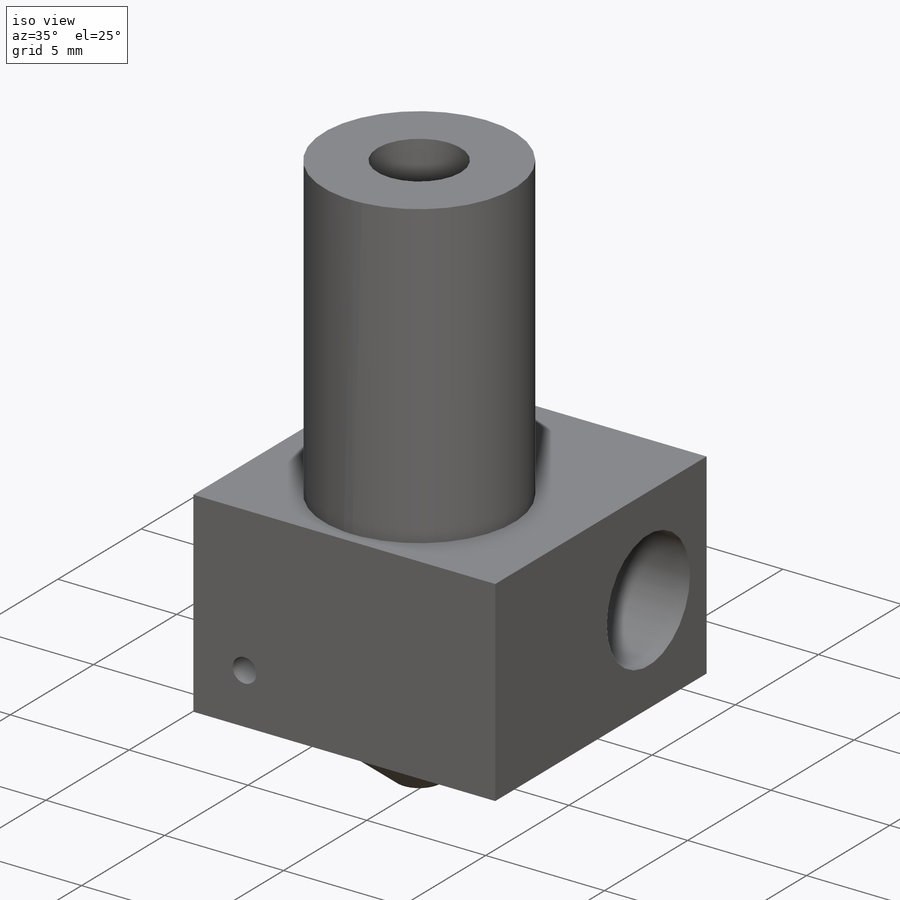
[diagram: iso view]
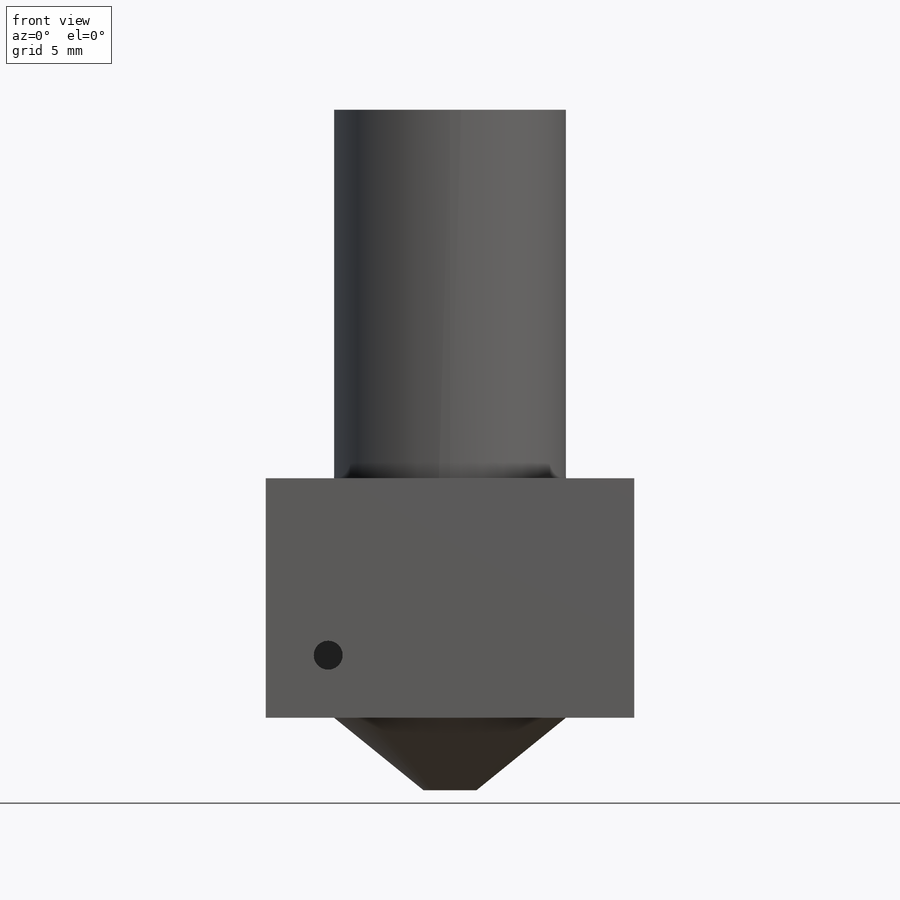
[diagram: front view]
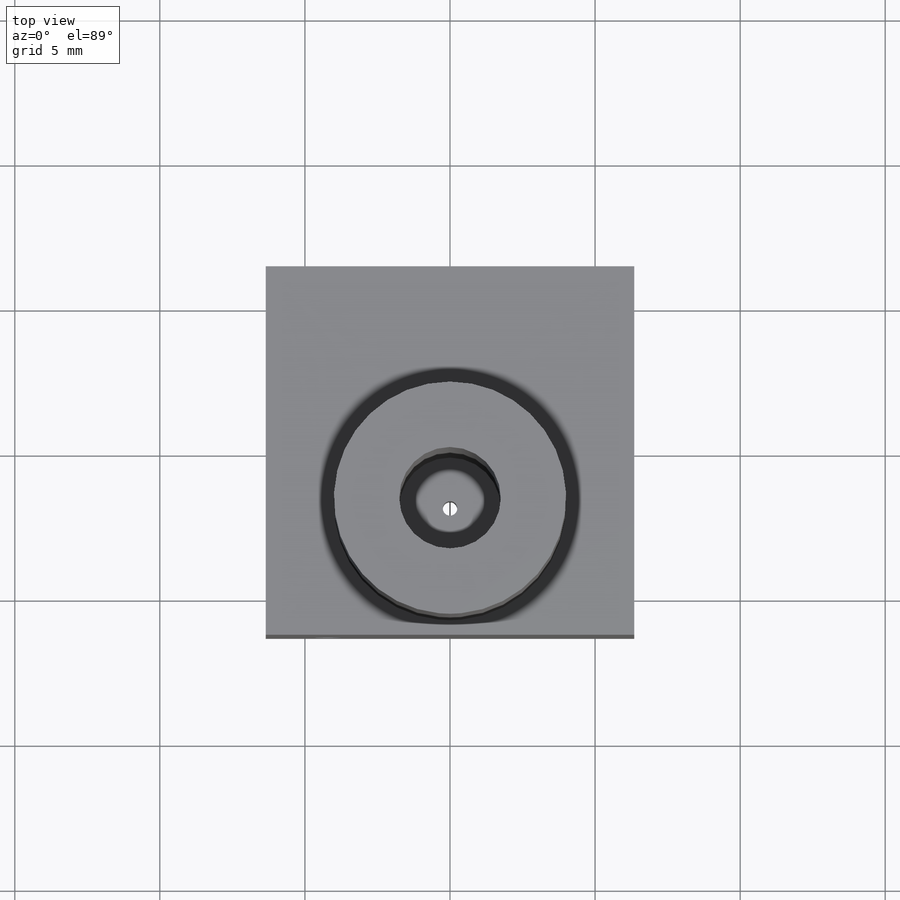
[diagram: top view]
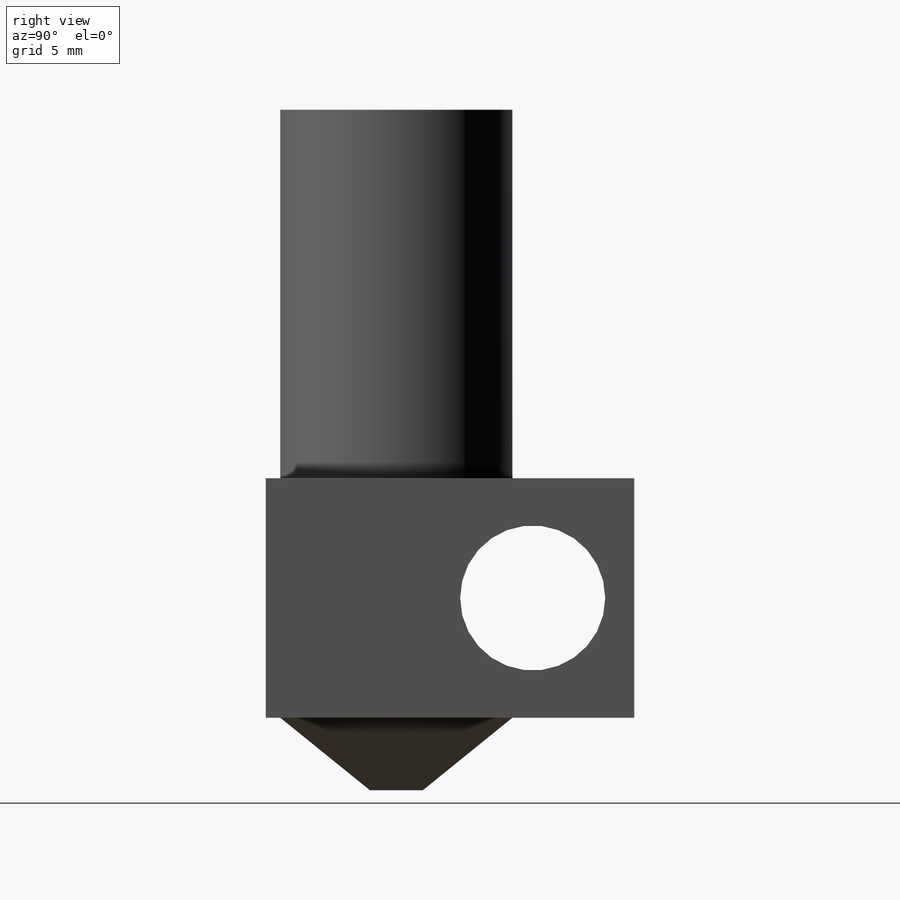
[diagram: right view]
SOLIDWORKS PART (.sldprt)
format: sldprt  version: not decoded by parser v0  size: 156,160 bytes
history: native  units: mm
features: sketch x7, cut_extrude x4, extrude x3, material x1 (+16 scaffold rows collapsed)
feature tree (31):
  scaffold x16  (default folders/planes/origin — collapsed)
  material  "Material <not specified>"
  sketch  "Sketch1"
  extrude  "Extrude1"  Depth=8.255mm
  sketch  "Sketch2"  dims[D1=4.5mm]
  extrude  "Extrude2"  Depth=12.7mm
  sketch  "Sketch3"  dims[D1=3.5mm]
  sketch  "Sketch4"  dims[D1=4.5mm]
  extrude  "Extrude8"  Depth=2.5mm
  sketch  "Sketch5"  dims[D1=~0.147375mm]
  cut_extrude  "Extrude9"  Depth=2.5mm
  cut_extrude  "Extrude10"  Depth=20.955mm
  sketch  "Sketch7"  dims[D1=3.5mm]
  cut_extrude  "Extrude11"  [1 undecoded]
  sketch  "Sketch8"  dims[D1=~0.729462mm]
  cut_extrude  "Extrude12"  Depth=2.5mm
decode coverage: 12 of 14 modeling features carry decoded parameters
note: ~ marks probable driven/reference dimensions
note: 1 parameter value undecoded
note: suppression state not decoded; provenance and decode notes live in map.json
